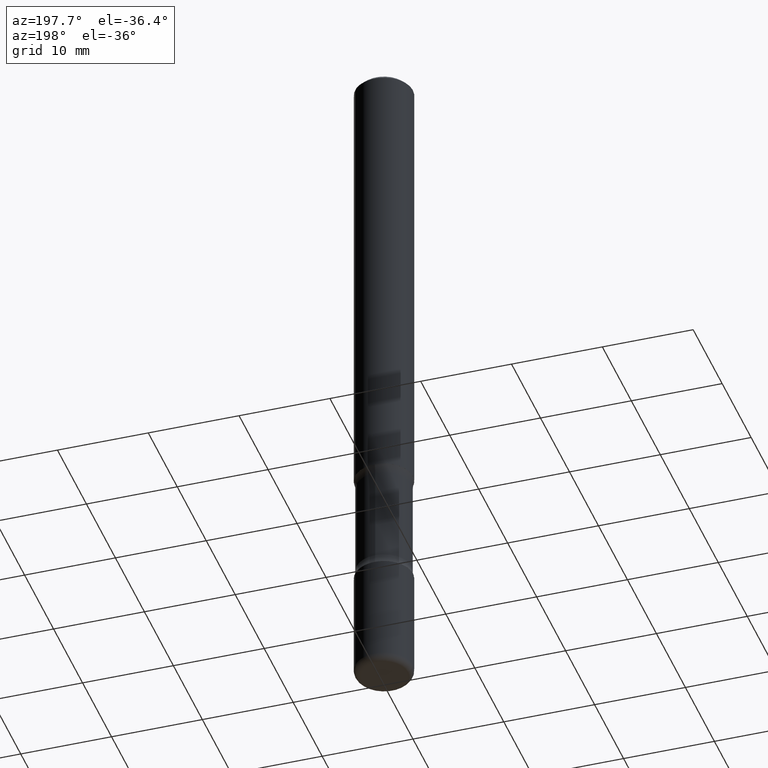
[diagram: clean part render]
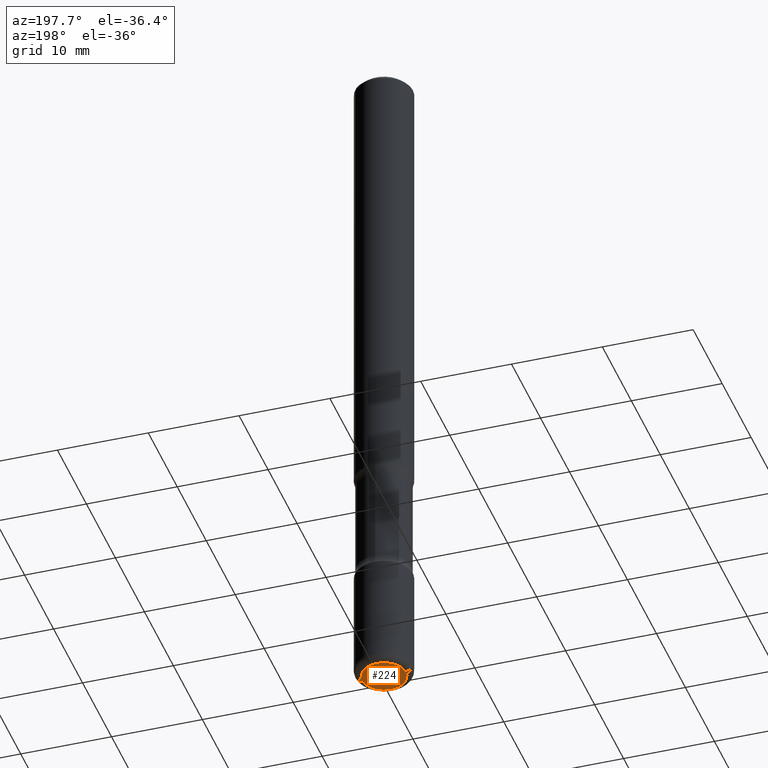
[diagram: same view with one face highlighted and labeled with its STEP entity id]
A machine part, auxiliary view. The second image highlights one B-rep face of the part: STEP entity #224.
In plain terms, the highlighted planar face has unit normal (0, -0, -1).
Its self-contained STEP definition (entity closure, byte-faithful):
#69 = DIRECTION ( 'NONE',  ( -2.445468806185136597E-29, 3.491481338843145583E-15, 1.000000000000000000 ) ) ;
#75 = EDGE_LOOP ( 'NONE', ( #103, #233 ) ) ;
#94 = EDGE_CURVE ( 'NONE', #557, #268, #317, .T. ) ;
#103 = ORIENTED_EDGE ( 'NONE', *, *, #94, .F. ) ;
#124 = DIRECTION ( 'NONE',  ( -1.000000000000000000, 6.982962677686265922E-15, -4.876176775795935793E-29 ) ) ;
#168 = CARTESIAN_POINT ( 'NONE',  ( 7.336406418555408669E-29, -1.047444401652943478E-14, -2.999999999999999556 ) ) ;
#173 = CARTESIAN_POINT ( 'NONE',  ( -0.09500000000000015377, -9.640474787110678770E-15, -2.999999999999999556 ) ) ;
#174 = CARTESIAN_POINT ( 'NONE',  ( 7.336406418555408669E-29, -1.047444401652943478E-14, -2.999999999999999556 ) ) ;
#175 = DIRECTION ( 'NONE',  ( -2.445468806185136597E-29, 3.491481338843145583E-15, 1.000000000000000000 ) ) ;
#189 = CARTESIAN_POINT ( 'NONE',  ( 0.09500000000000015377, -1.113782547090963138E-14, -2.999999999999999556 ) ) ;
#224 = ADVANCED_FACE ( 'NONE', ( #362 ), #552, .T. ) ;
#233 = ORIENTED_EDGE ( 'NONE', *, *, #295, .F. ) ;
#268 = VERTEX_POINT ( 'NONE', #173 ) ;
#291 = AXIS2_PLACEMENT_3D ( 'NONE', #541, #69, #498 ) ;
#295 = EDGE_CURVE ( 'NONE', #268, #557, #388, .T. ) ;
#317 = CIRCLE ( 'NONE', #291, 0.09500000000000015377 ) ;
#327 = DIRECTION ( 'NONE',  ( 2.438088387897960049E-29, -3.491481338843145188E-15, -1.000000000000000000 ) ) ;
#362 = FACE_OUTER_BOUND ( 'NONE', #75, .T. ) ;
#388 = CIRCLE ( 'NONE', #417, 0.09500000000000015377 ) ;
#417 = AXIS2_PLACEMENT_3D ( 'NONE', #174, #175, #505 ) ;
#498 = DIRECTION ( 'NONE',  ( 1.000000000000000000, -6.982962677686270655E-15, 0.000000000000000000 ) ) ;
#505 = DIRECTION ( 'NONE',  ( 1.000000000000000000, -6.982962677686270655E-15, 0.000000000000000000 ) ) ;
#541 = CARTESIAN_POINT ( 'NONE',  ( 7.336406418555408669E-29, -1.047444401652943478E-14, -2.999999999999999556 ) ) ;
#548 = AXIS2_PLACEMENT_3D ( 'NONE', #168, #327, #124 ) ;
#552 = PLANE ( 'NONE',  #548 ) ;
#557 = VERTEX_POINT ( 'NONE', #189 ) ;